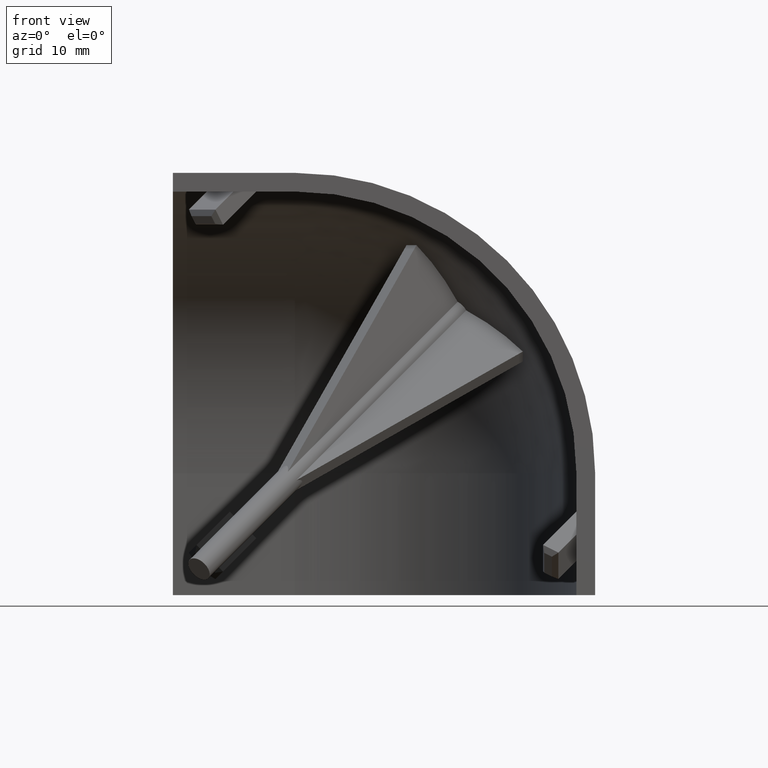
[diagram: clean part render]
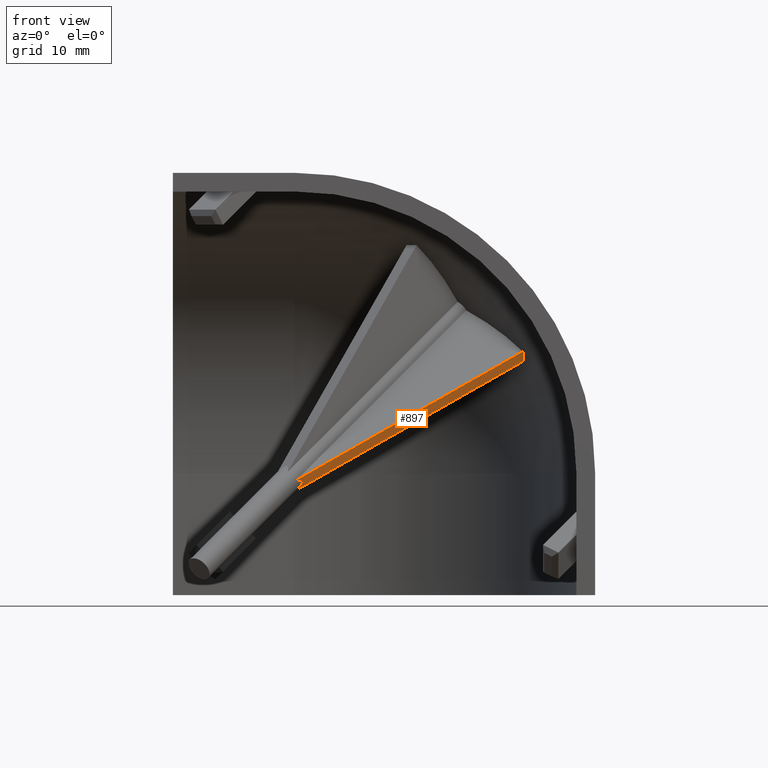
[diagram: same view with one face highlighted and labeled with its STEP entity id]
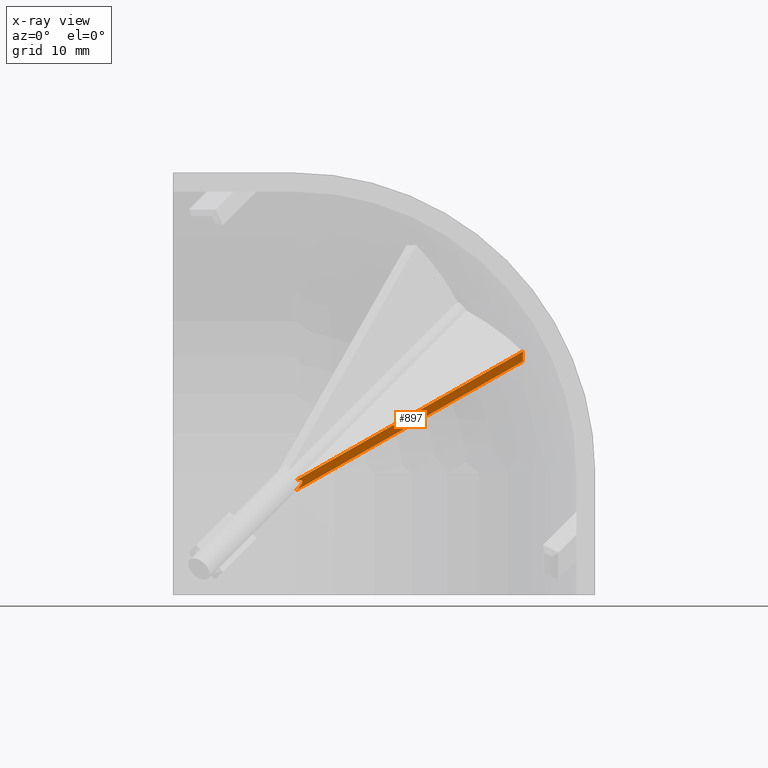
[diagram: x-ray of the same camera — body ghosted, the highlighted face saturated]
A machine part, front view. The second image highlights one B-rep face of the part: STEP entity #897.
The next image is the same camera in x-ray: the body ghosted, the highlighted face saturated — about 0% of this face is hidden behind the body in this view.
In plain terms, the highlighted planar face has unit normal (0.6264, -0.5512, -0.5512).
Its self-contained STEP definition (entity closure, byte-faithful):
#27=PLANE($,#983);
#115=LINE($,#1441,#214);
#116=LINE($,#1442,#215);
#214=VECTOR($,#1164,30.9555790759951);
#215=VECTOR($,#1165,30.9555790302484);
#269=ELLIPSE($,#940,5.09339619645517,1.40000015972746);
#290=FACE_OUTER_BOUND($,#350,.T.);
#350=EDGE_LOOP($,(#733,#734,#735,#736));
#399=CIRCLE($,#954,29.9616539883931);
#416=VERTEX_POINT($,#1303);
#417=VERTEX_POINT($,#1305);
#431=VERTEX_POINT($,#1336);
#432=VERTEX_POINT($,#1338);
#495=EDGE_CURVE($,#417,#416,#269,.T.);
#512=EDGE_CURVE($,#431,#432,#399,.T.);
#563=EDGE_CURVE($,#417,#431,#115,.T.);
#564=EDGE_CURVE($,#416,#432,#116,.T.);
#733=ORIENTED_EDGE($,*,*,#512,.F.);
#734=ORIENTED_EDGE($,*,*,#563,.F.);
#735=ORIENTED_EDGE($,*,*,#495,.T.);
#736=ORIENTED_EDGE($,*,*,#564,.T.);
#897=ADVANCED_FACE($,(#290),#27,.T.);
#940=AXIS2_PLACEMENT_3D($,#1306,#1033,#1034);
#954=AXIS2_PLACEMENT_3D($,#1339,#1065,#1066);
#983=AXIS2_PLACEMENT_3D($,#1440,#1162,#1163);
#1033=DIRECTION('center_axis',(-0.626353444778685,0.551217453564603,-0.551217453551345));
#1034=DIRECTION('ref_axis',(0.779539198638448,0.442898784973294,-0.44289875147183));
#1065=DIRECTION('center_axis',(-0.626353444782076,0.551217453556047,-0.551217453556048));
#1066=DIRECTION('ref_axis',(0.660645741583929,4.21738323785582E-014,-0.750697811457461));
#1162=DIRECTION('center_axis',(0.626353444782076,-0.551217453556047,0.551217453556048));
#1163=DIRECTION('ref_axis',(0.660645741583908,0.,-0.750697811457479));
#1164=DIRECTION($,(0.779539198635724,0.442898768224959,-0.44289876822496));
#1165=DIRECTION($,(0.779539198635724,0.442898768224959,-0.44289876822496));
#1303=CARTESIAN_POINT('',(13.1676432478459,11.1894699161628,-12.2501301105347));
#1305=CARTESIAN_POINT('',(13.1676432145568,12.2501300768897,-11.1894699051099));
#1306=CARTESIAN_POINT('Origin',(9.81495396323283,9.81495413591604,-9.81495432003085));
#1336=CARTESIAN_POINT('',(37.2987305207628,25.9603179193383,-24.8996577475585));
#1338=CARTESIAN_POINT('',(37.2987305207628,24.8996577475585,-25.9603179193383));
#1339=CARTESIAN_POINT('Origin',(13.9497654607634,12.16416632954,-12.16416632954));
#1440=CARTESIAN_POINT('Origin',(45.0464002503355,29.3015318109113,-30.3621919826911));
#1441=CARTESIAN_POINT($,(13.1676432145569,12.2501300768896,-11.1894699051098));
#1442=CARTESIAN_POINT($,(13.1676432145571,11.1894699051099,-12.2501300768897));